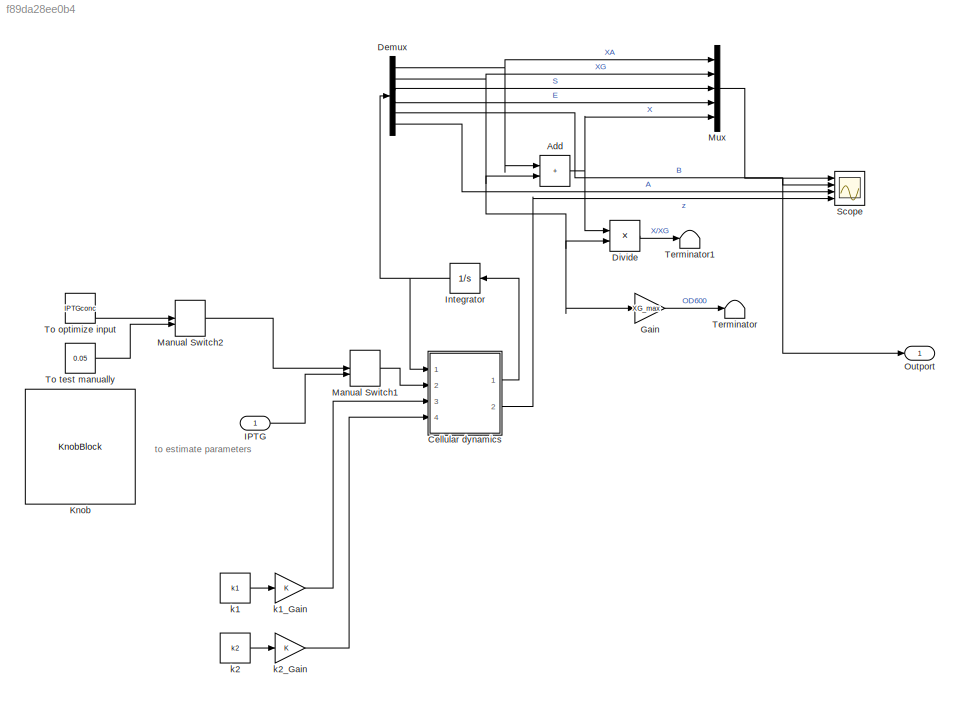
MODEL slx_f89da28ee0b4
KIND model
CONFIG AbsTol = auto
CONFIG EnableMultiTasking = off
CONFIG FixedStep = auto
CONFIG MaxStep = 0.01
CONFIG MinStep = auto
CONFIG RelTol = 1e-3
CONFIG SampleTimeConstraint = Unconstrained
CONFIG SolverName = VariableStepAuto
CONFIG StartTime = 0.0
CONFIG StopTime = 51.5
WORKSPACE source: mxarray member
WORKSPACE IPTGconc = 0.0436365842371
WORKSPACE KE = 0.00336436543315
WORKSPACE XG0 = 0.005
WORKSPACE XG_max = 5.67988463796
WORKSPACE aE = 0.0190178810874
WORKSPACE dA = 0.148862069804
WORKSPACE k1 = 0.452621114798
WORKSPACE k2 = 1
WORKSPACE k3 = 2
WORKSPACE kA = 1913.69174642
WORKSPACE n0 = 4.80868240092
WORKSPACE rleak = 0.0606632472304
BLOCK [Sum] Add
  IconShape = rectangular
  Ports = [2, 1]
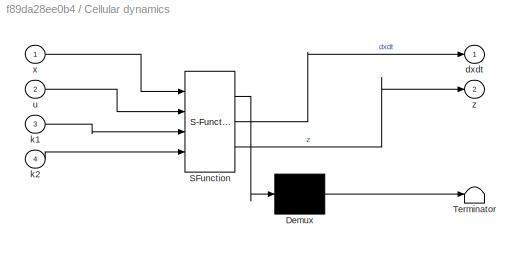
BLOCK [SubSystem] Cellular dynamics
  ErrorFcn = Stateflow.Translate.translate
  PermitHierarchicalResolution = ExplicitOnly
  Ports = [4, 2]
  RequestExecContextInheritance = off
  SFBlockType = MATLAB Function
  TreatAsAtomicUnit = on
BLOCK [Demux] Cellular dynamics/ Demux 
  Outputs = 1
  Ports = [1, 1]
BLOCK [S-Function] Cellular dynamics/ SFunction 
  EnableBusSupport = on
  FunctionName = sf_sfun
  Parameters = KE,aE,dA,k3,kA,rleak
  PortCounts = [4 3]
  Ports = [4, 3]
  SFcnIsStateOwnerBlock = off
  SFunctionDeploymentMode = off
  Tag = Stateflow S-Function 2
BLOCK [Terminator] Cellular dynamics/ Terminator 
BLOCK [Outport] Cellular dynamics/dxdt
BLOCK [Inport] Cellular dynamics/k1
  Port = 3
BLOCK [Inport] Cellular dynamics/k2
  Port = 4
BLOCK [Inport] Cellular dynamics/u
  Port = 2
BLOCK [Inport] Cellular dynamics/x
BLOCK [Outport] Cellular dynamics/z
  Port = 2
BLOCK [Demux] Demux
  Outputs = 6
  Ports = [1, 6]
BLOCK [Product] Divide
  Inputs = */
  Ports = [2, 1]
BLOCK [Gain] Gain
  Gain = XG_max
BLOCK [Inport] IPTG
BLOCK [Integrator] Integrator
  InitialCondition = [n0*XG0; XG0; 1-n0*XG0-XG0; 0; 0; 0.01]
  Ports = [1, 1]
BLOCK [KnobBlock] Knob
  ScaleMax = 1
  ScaleMin = 0.01
  ScaleType = Log
BLOCK [ManualSwitch] Manual Switch1
BLOCK [ManualSwitch] Manual Switch2
BLOCK [Mux] Mux
  DisplayOption = bar
  Inputs = 5
  Ports = [5, 1]
BLOCK [Outport] Outport
BLOCK [Scope] Scope
  Floating = off
  NumInputPorts = 4
  Ports = [4]
  ScopeSpecificationString = Simulink.scopes.TimeScopeBlockCfg('CurrentConfiguration', extmgr.ConfigurationSet(extmgr.Configuration('Core','General UI',true),extmgr.Configuration('Core','Source UI',true),extmgr.Configuration('Sources','WiredSimulink',true),extmgr.Configuration('Visuals','Time Domain',true,'SerializedDisplays',{struct('MinYLimReal','0','MaxYLimReal','1','YLabelReal','','MinYLimMag','0.00000','MaxYLimMag','1.04...<+4130ch>
BLOCK [Terminator] Terminator
BLOCK [Terminator] Terminator1
BLOCK [Constant] To optimize input
  Value = IPTGconc
BLOCK [Constant] To test manually
  Value = 0.05
BLOCK [Constant] k1
  Value = k1
BLOCK [Gain] k1_Gain
BLOCK [Constant] k2
  Value = k2
BLOCK [Gain] k2_Gain
ANNOTATION (root): to estimate parameters
NET Add:1 -> Divide:1, Mux:5
LINE Cellular dynamics:1 -> Integrator:1
LINE Cellular dynamics:2 -> Scope:4
NET Demux:1 -> Add:1, Mux:1
NET Demux:2 -> Add:2, Divide:2, Gain:1, Mux:2
LINE Demux:3 -> Mux:3
LINE Demux:4 -> Mux:4
NET Demux:5 -> Outport:1, Scope:2
LINE Demux:6 -> Scope:3
LINE Divide:1 -> Terminator1:1
LINE Gain:1 -> Terminator:1
LINE IPTG:1 -> Manual Switch1:2
NET Integrator:1 -> Cellular dynamics:1, Demux:1
LINE Manual Switch1:1 -> Cellular dynamics:2
LINE Manual Switch2:1 -> Manual Switch1:1
LINE Mux:1 -> Scope:1
LINE To optimize input:1 -> Manual Switch2:1
LINE To test manually:1 -> Manual Switch2:2
LINE k1:1 -> k1_Gain:1
LINE k1_Gain:1 -> Cellular dynamics:3
LINE k2:1 -> k2_Gain:1
LINE k2_Gain:1 -> Cellular dynamics:4
note: NET lines group one-source signal fan-out (src -> all destinations, sorted); 1:1 wires keep LINE
CHART Cellular dynamics states=1 transitions=1
  STATE_LABEL 'eML_blk_kernel()'
  STATE_LABEL 'SCRIPT:\nfunction [dxdt,z] = StateFcn(x,u,k3, rleak, aE, KE, kA, dA, k1, k2)\n%% Parameters\n% k1 = 0.5;\n% k2 = 1;\n% k3 = 2;\n% rleak = 0.3;\n% aE = 0.3;\n% KE = 0.2;\n\n% kA = 10000;\n% dA = 0.4;\n\n% fixed parameters of the promoter response\nKA = 1.596;\nKu = 0.02268;\nnA = 1.752;\nnu = 1.597;\n\n%% Input variables and feed concentration\n\n%% State variables\nXA = x(1);\nXG = x(2);\nS = x(3);\nE = x(4);\n% B = x(5);\n...<+460ch>'
CHART  states=0 transitions=0
